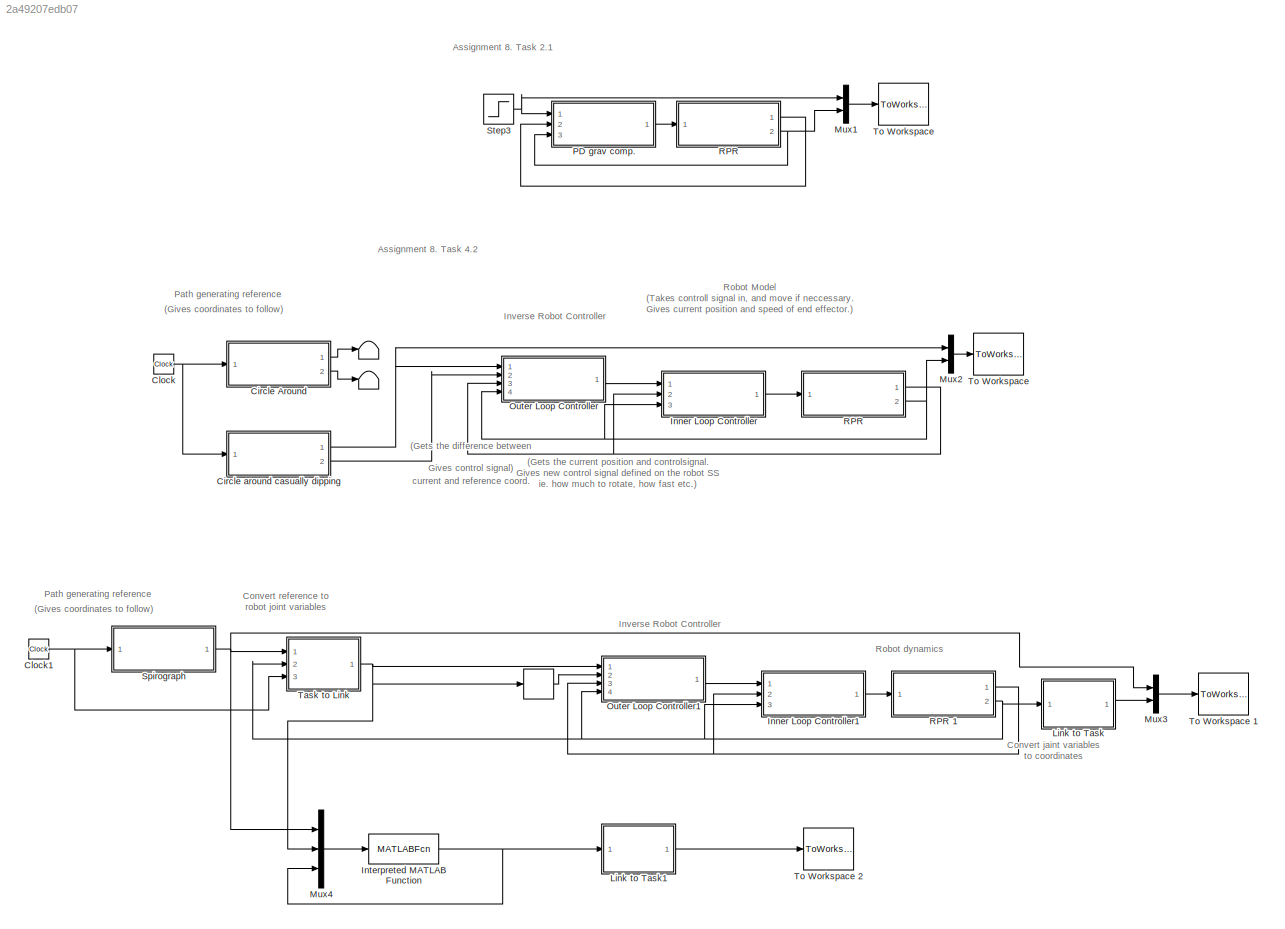
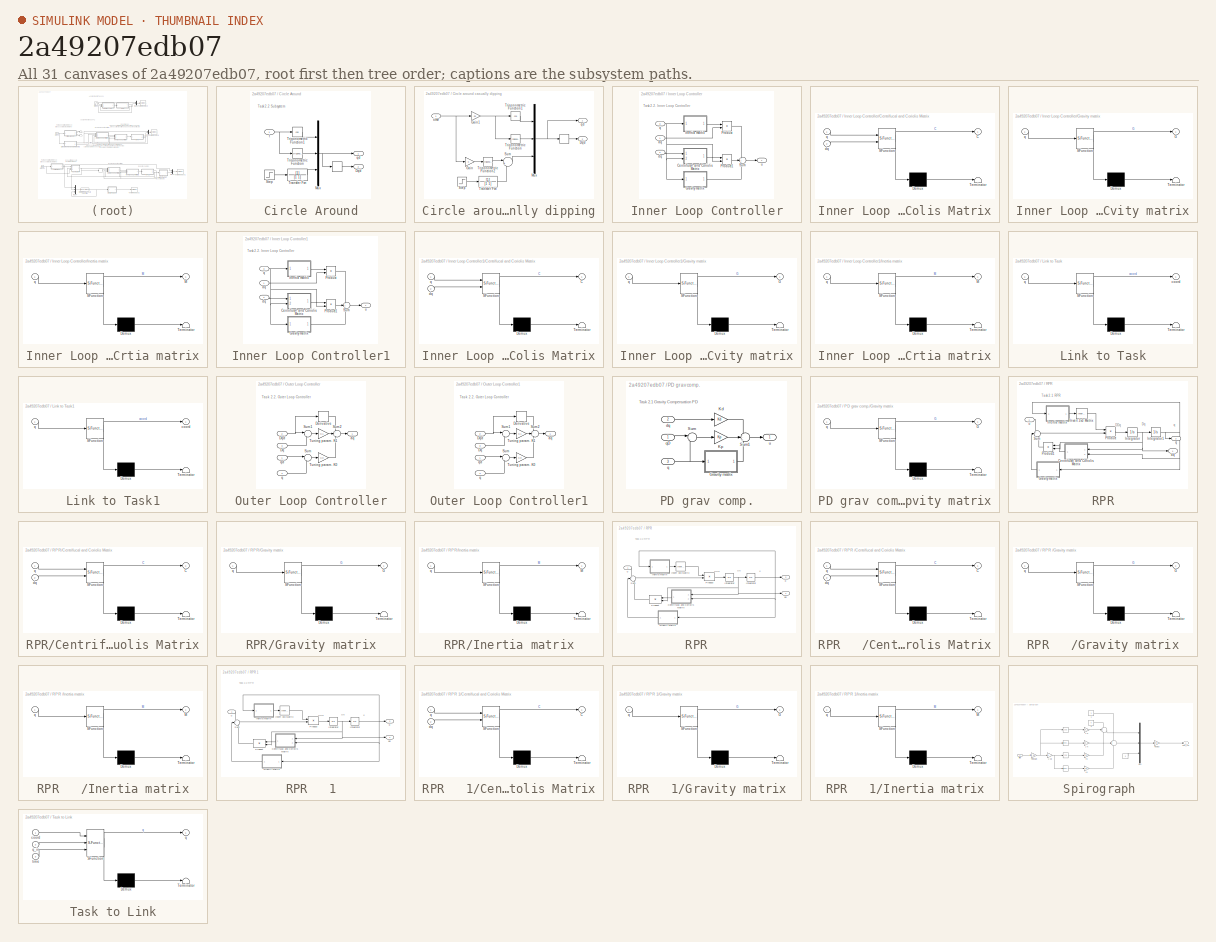
[diagram: thumbnail index - all 31 canvases of the model, root first then tree order]
MODEL slx_2a49207edb07
KIND model
BLOCK [Terminator]  
BLOCK [Terminator]   
BLOCK [SubSystem] Circle Around
  Ports = [1, 2]
  RequestExecContextInheritance = off
BLOCK [Derivative] Circle Around/ 
BLOCK [Outport] Circle Around/Dqd
  IconDisplay = Port number
  Port = 2
BLOCK [Mux] Circle Around/Mux
  DisplayOption = bar
  Inputs = 3
  Ports = [3, 1]
BLOCK [Step] Circle Around/Step
  SampleTime = 0
BLOCK [TransferFcn] Circle Around/Transfer Fcn
  Denominator = [1 1]
BLOCK [Trigonometry] Circle Around/Trigonometric Function
  Ports = [1, 1]
BLOCK [Trigonometry] Circle Around/Trigonometric Function1
  Operator = cos
  Ports = [1, 1]
BLOCK [Outport] Circle Around/qd
  IconDisplay = Port number
BLOCK [Inport] Circle Around/t
  IconDisplay = Port number
BLOCK [SubSystem] Circle around casually dipping
  Ports = [1, 2]
  RequestExecContextInheritance = off
BLOCK [Derivative] Circle around casually dipping/ 
BLOCK [Outport] Circle around casually dipping/Dqd
  IconDisplay = Port number
  Port = 2
BLOCK [Gain] Circle around casually dipping/Gain
  OutDataTypeStr = Inherit: Inherit via internal rule
  ParamDataTypeStr = Inherit: Inherit via internal rule
  SaturateOnIntegerOverflow = off
BLOCK [Gain] Circle around casually dipping/Gain1
  Gain = .25
  OutDataTypeStr = Inherit: Inherit via internal rule
  ParamDataTypeStr = Inherit: Inherit via internal rule
  SaturateOnIntegerOverflow = off
BLOCK [Mux] Circle around casually dipping/Mux
  DisplayOption = bar
  Inputs = 3
  Ports = [3, 1]
BLOCK [Step] Circle around casually dipping/Step
  SampleTime = 0
BLOCK [Sum] Circle around casually dipping/Sum
  IconShape = round
  InputSameDT = off
  Inputs = |++
  OutDataTypeStr = Inherit: Inherit via internal rule
  Ports = [2, 1]
  SaturateOnIntegerOverflow = off
BLOCK [TransferFcn] Circle around casually dipping/Transfer Fcn
  Denominator = [1 1]
BLOCK [Trigonometry] Circle around casually dipping/Trigonometric Function
  Ports = [1, 1]
BLOCK [Trigonometry] Circle around casually dipping/Trigonometric Function1
  Operator = cos
  Ports = [1, 1]
BLOCK [Trigonometry] Circle around casually dipping/Trigonometric Function2
  Ports = [1, 1]
BLOCK [Outport] Circle around casually dipping/qd
  IconDisplay = Port number
BLOCK [Inport] Circle around casually dipping/time
  IconDisplay = Port number
BLOCK [Clock] Clock
BLOCK [Clock] Clock1
BLOCK [SubSystem] Inner Loop Controller
  Ports = [3, 1]
  RequestExecContextInheritance = off
BLOCK [SubSystem] Inner Loop Controller/Centrifucal and Coriolis Matrix
  ErrorFcn = Stateflow.Translate.translate
  PermitHierarchicalResolution = ExplicitOnly
  Ports = [2, 1]
  RequestExecContextInheritance = off
  SFBlockType = MATLAB Function
  TreatAsAtomicUnit = on
BLOCK [Demux] Inner Loop Controller/Centrifucal and Coriolis Matrix/ Demux 
  Outputs = 1
  Ports = [1, 1]
BLOCK [S-Function] Inner Loop Controller/Centrifucal and Coriolis Matrix/ SFunction 
  EnableBusSupport = on
  FunctionName = sf_sfun
  PortCounts = [2 2]
  Ports = [2, 2]
  Tag = Stateflow S-Function model8 3
BLOCK [Terminator] Inner Loop Controller/Centrifucal and Coriolis Matrix/ Terminator 
BLOCK [Outport] Inner Loop Controller/Centrifucal and Coriolis Matrix/C
  IconDisplay = Port number
BLOCK [Inport] Inner Loop Controller/Centrifucal and Coriolis Matrix/dq
  IconDisplay = Port number
  Port = 2
BLOCK [Inport] Inner Loop Controller/Centrifucal and Coriolis Matrix/q
  IconDisplay = Port number
BLOCK [SubSystem] Inner Loop Controller/Gravity matrix
  ErrorFcn = Stateflow.Translate.translate
  PermitHierarchicalResolution = ExplicitOnly
  Ports = [1, 1]
  RequestExecContextInheritance = off
  SFBlockType = MATLAB Function
  TreatAsAtomicUnit = on
BLOCK [Demux] Inner Loop Controller/Gravity matrix/ Demux 
  Outputs = 1
  Ports = [1, 1]
BLOCK [S-Function] Inner Loop Controller/Gravity matrix/ SFunction 
  EnableBusSupport = on
  FunctionName = sf_sfun
  PortCounts = [1 2]
  Ports = [1, 2]
  Tag = Stateflow S-Function model8 9
BLOCK [Terminator] Inner Loop Controller/Gravity matrix/ Terminator 
BLOCK [Outport] Inner Loop Controller/Gravity matrix/G
  IconDisplay = Port number
BLOCK [Inport] Inner Loop Controller/Gravity matrix/q
  IconDisplay = Port number
BLOCK [SubSystem] Inner Loop Controller/Inertia matrix
  ErrorFcn = Stateflow.Translate.translate
  PermitHierarchicalResolution = ExplicitOnly
  Ports = [1, 1]
  RequestExecContextInheritance = off
  SFBlockType = MATLAB Function
  TreatAsAtomicUnit = on
BLOCK [Demux] Inner Loop Controller/Inertia matrix/ Demux 
  Outputs = 1
  Ports = [1, 1]
BLOCK [S-Function] Inner Loop Controller/Inertia matrix/ SFunction 
  EnableBusSupport = on
  FunctionName = sf_sfun
  PortCounts = [1 2]
  Ports = [1, 2]
  Tag = Stateflow S-Function model8 10
BLOCK [Terminator] Inner Loop Controller/Inertia matrix/ Terminator 
BLOCK [Outport] Inner Loop Controller/Inertia matrix/M
  IconDisplay = Port number
BLOCK [Inport] Inner Loop Controller/Inertia matrix/q
  IconDisplay = Port number
BLOCK [Product] Inner Loop Controller/Product
  InputSameDT = off
  Multiplication = Matrix(*)
  OutDataTypeStr = Inherit: Inherit via internal rule
  Ports = [2, 1]
  RndMeth = Floor
  SaturateOnIntegerOverflow = off
BLOCK [Product] Inner Loop Controller/Product1
  InputSameDT = off
  Multiplication = Matrix(*)
  OutDataTypeStr = Inherit: Inherit via internal rule
  Ports = [2, 1]
  RndMeth = Floor
  SaturateOnIntegerOverflow = off
BLOCK [Sum] Inner Loop Controller/Sum
  IconShape = round
  InputSameDT = off
  Inputs = +++
  OutDataTypeStr = Inherit: Inherit via internal rule
  Ports = [3, 1]
  SaturateOnIntegerOverflow = off
BLOCK [Inport] Inner Loop Controller/aq
  IconDisplay = Port number
BLOCK [Inport] Inner Loop Controller/dq
  IconDisplay = Port number
  Port = 2
BLOCK [Inport] Inner Loop Controller/q
  IconDisplay = Port number
  Port = 3
BLOCK [Outport] Inner Loop Controller/u
  IconDisplay = Port number
BLOCK [SubSystem] Inner Loop Controller1
  Ports = [3, 1]
  RequestExecContextInheritance = off
BLOCK [SubSystem] Inner Loop Controller1/Centrifucal and Coriolis Matrix
  ErrorFcn = Stateflow.Translate.translate
  PermitHierarchicalResolution = ExplicitOnly
  Ports = [2, 1]
  RequestExecContextInheritance = off
  SFBlockType = MATLAB Function
  TreatAsAtomicUnit = on
BLOCK [Demux] Inner Loop Controller1/Centrifucal and Coriolis Matrix/ Demux 
  Outputs = 1
  Ports = [1, 1]
BLOCK [S-Function] Inner Loop Controller1/Centrifucal and Coriolis Matrix/ SFunction 
  EnableBusSupport = on
  FunctionName = sf_sfun
  PortCounts = [2 2]
  Ports = [2, 2]
  Tag = Stateflow S-Function model8 1
BLOCK [Terminator] Inner Loop Controller1/Centrifucal and Coriolis Matrix/ Terminator 
BLOCK [Outport] Inner Loop Controller1/Centrifucal and Coriolis Matrix/C
  IconDisplay = Port number
BLOCK [Inport] Inner Loop Controller1/Centrifucal and Coriolis Matrix/dq
  IconDisplay = Port number
  Port = 2
BLOCK [Inport] Inner Loop Controller1/Centrifucal and Coriolis Matrix/q
  IconDisplay = Port number
BLOCK [SubSystem] Inner Loop Controller1/Gravity matrix
  ErrorFcn = Stateflow.Translate.translate
  PermitHierarchicalResolution = ExplicitOnly
  Ports = [1, 1]
  RequestExecContextInheritance = off
  SFBlockType = MATLAB Function
  TreatAsAtomicUnit = on
BLOCK [Demux] Inner Loop Controller1/Gravity matrix/ Demux 
  Outputs = 1
  Ports = [1, 1]
BLOCK [S-Function] Inner Loop Controller1/Gravity matrix/ SFunction 
  EnableBusSupport = on
  FunctionName = sf_sfun
  PortCounts = [1 2]
  Ports = [1, 2]
  Tag = Stateflow S-Function model8 2
BLOCK [Terminator] Inner Loop Controller1/Gravity matrix/ Terminator 
BLOCK [Outport] Inner Loop Controller1/Gravity matrix/G
  IconDisplay = Port number
BLOCK [Inport] Inner Loop Controller1/Gravity matrix/q
  IconDisplay = Port number
BLOCK [SubSystem] Inner Loop Controller1/Inertia matrix
  ErrorFcn = Stateflow.Translate.translate
  PermitHierarchicalResolution = ExplicitOnly
  Ports = [1, 1]
  RequestExecContextInheritance = off
  SFBlockType = MATLAB Function
  TreatAsAtomicUnit = on
BLOCK [Demux] Inner Loop Controller1/Inertia matrix/ Demux 
  Outputs = 1
  Ports = [1, 1]
BLOCK [S-Function] Inner Loop Controller1/Inertia matrix/ SFunction 
  EnableBusSupport = on
  FunctionName = sf_sfun
  PortCounts = [1 2]
  Ports = [1, 2]
  Tag = Stateflow S-Function model8 4
BLOCK [Terminator] Inner Loop Controller1/Inertia matrix/ Terminator 
BLOCK [Outport] Inner Loop Controller1/Inertia matrix/M
  IconDisplay = Port number
BLOCK [Inport] Inner Loop Controller1/Inertia matrix/q
  IconDisplay = Port number
BLOCK [Product] Inner Loop Controller1/Product
  InputSameDT = off
  Multiplication = Matrix(*)
  OutDataTypeStr = Inherit: Inherit via internal rule
  Ports = [2, 1]
  RndMeth = Floor
  SaturateOnIntegerOverflow = off
BLOCK [Product] Inner Loop Controller1/Product1
  InputSameDT = off
  Multiplication = Matrix(*)
  OutDataTypeStr = Inherit: Inherit via internal rule
  Ports = [2, 1]
  RndMeth = Floor
  SaturateOnIntegerOverflow = off
BLOCK [Sum] Inner Loop Controller1/Sum
  IconShape = round
  InputSameDT = off
  Inputs = +++
  OutDataTypeStr = Inherit: Inherit via internal rule
  Ports = [3, 1]
  SaturateOnIntegerOverflow = off
BLOCK [Inport] Inner Loop Controller1/aq
  IconDisplay = Port number
BLOCK [Inport] Inner Loop Controller1/dq
  IconDisplay = Port number
  Port = 2
BLOCK [Inport] Inner Loop Controller1/q
  IconDisplay = Port number
  Port = 3
BLOCK [Outport] Inner Loop Controller1/u
  IconDisplay = Port number
BLOCK [MATLABFcn] Interpreted MATLAB Function
  Commented = through
  MATLABFcn = forward_optim(u(7:9), u(4:6), u(1:3))
  OutputDimensions = 3
  Ports = [1, 1]
BLOCK [SubSystem] Link to Task
  ErrorFcn = Stateflow.Translate.translate
  PermitHierarchicalResolution = ExplicitOnly
  Ports = [1, 1]
  RequestExecContextInheritance = off
  SFBlockType = MATLAB Function
  TreatAsAtomicUnit = on
BLOCK [Demux] Link to Task/ Demux 
  Outputs = 1
  Ports = [1, 1]
BLOCK [S-Function] Link to Task/ SFunction 
  EnableBusSupport = on
  FunctionName = sf_sfun
  PortCounts = [1 2]
  Ports = [1, 2]
  Tag = Stateflow S-Function model8 17
BLOCK [Terminator] Link to Task/ Terminator 
BLOCK [Outport] Link to Task/coord
  IconDisplay = Port number
BLOCK [Inport] Link to Task/q
  IconDisplay = Port number
BLOCK [SubSystem] Link to Task1
  Commented = through
  ErrorFcn = Stateflow.Translate.translate
  PermitHierarchicalResolution = ExplicitOnly
  Ports = [1, 1]
  RequestExecContextInheritance = off
  SFBlockType = MATLAB Function
  TreatAsAtomicUnit = on
BLOCK [Demux] Link to Task1/ Demux 
  Outputs = 1
  Ports = [1, 1]
BLOCK [S-Function] Link to Task1/ SFunction 
  EnableBusSupport = on
  FunctionName = sf_sfun
  PortCounts = [1 2]
  Ports = [1, 2]
  Tag = Stateflow S-Function model8 19
BLOCK [Terminator] Link to Task1/ Terminator 
BLOCK [Outport] Link to Task1/coord
  IconDisplay = Port number
BLOCK [Inport] Link to Task1/q
  IconDisplay = Port number
BLOCK [Mux] Mux1
  DisplayOption = bar
  Inputs = 2
  Ports = [2, 1]
BLOCK [Mux] Mux2
  DisplayOption = bar
  Inputs = 2
  Ports = [2, 1]
BLOCK [Mux] Mux3
  DisplayOption = bar
  Inputs = 2
  Ports = [2, 1]
BLOCK [Mux] Mux4
  Commented = on
  DisplayOption = bar
  Inputs = 3
  Ports = [3, 1]
BLOCK [SubSystem] Outer Loop Controller
  Ports = [4, 1]
  RequestExecContextInheritance = off
BLOCK [Derivative] Outer Loop Controller/Derivative
BLOCK [Inport] Outer Loop Controller/Dq
  IconDisplay = Port number
  Port = 3
BLOCK [Inport] Outer Loop Controller/Dqd
  IconDisplay = Port number
  Port = 2
BLOCK [Sum] Outer Loop Controller/Sum
  IconShape = round
  InputSameDT = off
  Inputs = |-+
  OutDataTypeStr = Inherit: Inherit via internal rule
  Ports = [2, 1]
  SaturateOnIntegerOverflow = off
BLOCK [Sum] Outer Loop Controller/Sum1
  IconShape = round
  InputSameDT = off
  Inputs = |-+
  OutDataTypeStr = Inherit: Inherit via internal rule
  Ports = [2, 1]
  SaturateOnIntegerOverflow = off
BLOCK [Sum] Outer Loop Controller/Sum2
  IconShape = round
  InputSameDT = off
  Inputs = +--
  OutDataTypeStr = Inherit: Inherit via internal rule
  Ports = [3, 1]
  SaturateOnIntegerOverflow = off
BLOCK [Gain] Outer Loop Controller/Tuning param. K0
  Gain = K0
  Multiplication = Matrix(K*u) (u vector)
  OutDataTypeStr = Inherit: Inherit via internal rule
  ParamDataTypeStr = Inherit: Inherit via internal rule
  SaturateOnIntegerOverflow = off
BLOCK [Gain] Outer Loop Controller/Tuning param. K1
  Gain = K1
  Multiplication = Matrix(K*u) (u vector)
  OutDataTypeStr = Inherit: Inherit via internal rule
  ParamDataTypeStr = Inherit: Inherit via internal rule
  SaturateOnIntegerOverflow = off
BLOCK [Outport] Outer Loop Controller/aq
  IconDisplay = Port number
BLOCK [Inport] Outer Loop Controller/q
  IconDisplay = Port number
  Port = 4
BLOCK [Inport] Outer Loop Controller/qd
  IconDisplay = Port number
BLOCK [SubSystem] Outer Loop Controller1
  Ports = [4, 1]
  RequestExecContextInheritance = off
BLOCK [Derivative] Outer Loop Controller1/Derivative
BLOCK [Inport] Outer Loop Controller1/Dq
  IconDisplay = Port number
  Port = 3
BLOCK [Inport] Outer Loop Controller1/Dqd
  IconDisplay = Port number
  Port = 2
BLOCK [Sum] Outer Loop Controller1/Sum
  IconShape = round
  InputSameDT = off
  Inputs = |-+
  OutDataTypeStr = Inherit: Inherit via internal rule
  Ports = [2, 1]
  SaturateOnIntegerOverflow = off
BLOCK [Sum] Outer Loop Controller1/Sum1
  IconShape = round
  InputSameDT = off
  Inputs = |-+
  OutDataTypeStr = Inherit: Inherit via internal rule
  Ports = [2, 1]
  SaturateOnIntegerOverflow = off
BLOCK [Sum] Outer Loop Controller1/Sum2
  IconShape = round
  InputSameDT = off
  Inputs = +--
  OutDataTypeStr = Inherit: Inherit via internal rule
  Ports = [3, 1]
  SaturateOnIntegerOverflow = off
BLOCK [Gain] Outer Loop Controller1/Tuning param. K0
  Gain = K0
  Multiplication = Matrix(K*u) (u vector)
  OutDataTypeStr = Inherit: Inherit via internal rule
  ParamDataTypeStr = Inherit: Inherit via internal rule
  SaturateOnIntegerOverflow = off
BLOCK [Gain] Outer Loop Controller1/Tuning param. K1
  Gain = K1
  Multiplication = Matrix(K*u) (u vector)
  OutDataTypeStr = Inherit: Inherit via internal rule
  ParamDataTypeStr = Inherit: Inherit via internal rule
  SaturateOnIntegerOverflow = off
BLOCK [Outport] Outer Loop Controller1/aq
  IconDisplay = Port number
BLOCK [Inport] Outer Loop Controller1/q
  IconDisplay = Port number
  Port = 4
BLOCK [Inport] Outer Loop Controller1/qd
  IconDisplay = Port number
BLOCK [SubSystem] PD grav comp.
  Ports = [3, 1]
  RequestExecContextInheritance = off
BLOCK [SubSystem] PD grav comp./Gravity matrix
  ErrorFcn = Stateflow.Translate.translate
  PermitHierarchicalResolution = ExplicitOnly
  Ports = [1, 1]
  RequestExecContextInheritance = off
  SFBlockType = MATLAB Function
  TreatAsAtomicUnit = on
BLOCK [Demux] PD grav comp./Gravity matrix/ Demux 
  Outputs = 1
  Ports = [1, 1]
BLOCK [S-Function] PD grav comp./Gravity matrix/ SFunction 
  EnableBusSupport = on
  FunctionName = sf_sfun
  PortCounts = [1 2]
  Ports = [1, 2]
  Tag = Stateflow S-Function model8 6
BLOCK [Terminator] PD grav comp./Gravity matrix/ Terminator 
BLOCK [Outport] PD grav comp./Gravity matrix/G
  IconDisplay = Port number
BLOCK [Inport] PD grav comp./Gravity matrix/q
  IconDisplay = Port number
BLOCK [Gain] PD grav comp./Kd
  Gain = Kd
  Multiplication = Matrix(K*u)
  OutDataTypeStr = Inherit: Inherit via internal rule
  ParamDataTypeStr = Inherit: Inherit via internal rule
  SaturateOnIntegerOverflow = off
BLOCK [Gain] PD grav comp./Kp
  Gain = Kp
  Multiplication = Matrix(K*u)
  OutDataTypeStr = Inherit: Inherit via internal rule
  ParamDataTypeStr = Inherit: Inherit via internal rule
  SaturateOnIntegerOverflow = off
BLOCK [Sum] PD grav comp./Sum
  IconShape = round
  InputSameDT = off
  Inputs = |-+
  OutDataTypeStr = Inherit: Inherit via internal rule
  Ports = [2, 1]
  SaturateOnIntegerOverflow = off
BLOCK [Sum] PD grav comp./Sum1
  IconShape = round
  InputSameDT = off
  Inputs = --+
  OutDataTypeStr = Inherit: Inherit via internal rule
  Ports = [3, 1]
  SaturateOnIntegerOverflow = off
BLOCK [Inport] PD grav comp./dq
  IconDisplay = Port number
  Port = 2
BLOCK [Inport] PD grav comp./q
  IconDisplay = Port number
  Port = 3
BLOCK [Inport] PD grav comp./qD
  IconDisplay = Port number
BLOCK [Outport] PD grav comp./u
  IconDisplay = Port number
BLOCK [SubSystem] RPR
  Ports = [1, 2]
  RequestExecContextInheritance = off
BLOCK [SubSystem] RPR   
  Ports = [1, 2]
  RequestExecContextInheritance = off
BLOCK [SubSystem] RPR   /Centrifucal and Coriolis Matrix
  ErrorFcn = Stateflow.Translate.translate
  PermitHierarchicalResolution = ExplicitOnly
  Ports = [2, 1]
  RequestExecContextInheritance = off
  SFBlockType = MATLAB Function
  TreatAsAtomicUnit = on
BLOCK [Demux] RPR   /Centrifucal and Coriolis Matrix/ Demux 
  Outputs = 1
  Ports = [1, 1]
BLOCK [S-Function] RPR   /Centrifucal and Coriolis Matrix/ SFunction 
  EnableBusSupport = on
  FunctionName = sf_sfun
  PortCounts = [2 2]
  Ports = [2, 2]
  Tag = Stateflow S-Function model8 11
BLOCK [Terminator] RPR   /Centrifucal and Coriolis Matrix/ Terminator 
BLOCK [Outport] RPR   /Centrifucal and Coriolis Matrix/C
  IconDisplay = Port number
BLOCK [Inport] RPR   /Centrifucal and Coriolis Matrix/dq
  IconDisplay = Port number
  Port = 2
BLOCK [Inport] RPR   /Centrifucal and Coriolis Matrix/q
  IconDisplay = Port number
BLOCK [SubSystem] RPR   /Gravity matrix
  ErrorFcn = Stateflow.Translate.translate
  PermitHierarchicalResolution = ExplicitOnly
  Ports = [1, 1]
  RequestExecContextInheritance = off
  SFBlockType = MATLAB Function
  TreatAsAtomicUnit = on
BLOCK [Demux] RPR   /Gravity matrix/ Demux 
  Outputs = 1
  Ports = [1, 1]
BLOCK [S-Function] RPR   /Gravity matrix/ SFunction 
  EnableBusSupport = on
  FunctionName = sf_sfun
  PortCounts = [1 2]
  Ports = [1, 2]
  Tag = Stateflow S-Function model8 12
BLOCK [Terminator] RPR   /Gravity matrix/ Terminator 
BLOCK [Outport] RPR   /Gravity matrix/G
  IconDisplay = Port number
BLOCK [Inport] RPR   /Gravity matrix/q
  IconDisplay = Port number
BLOCK [SubSystem] RPR   /Inertia matrix
  ErrorFcn = Stateflow.Translate.translate
  PermitHierarchicalResolution = ExplicitOnly
  Ports = [1, 1]
  RequestExecContextInheritance = off
  SFBlockType = MATLAB Function
  TreatAsAtomicUnit = on
BLOCK [Demux] RPR   /Inertia matrix/ Demux 
  Outputs = 1
  Ports = [1, 1]
BLOCK [S-Function] RPR   /Inertia matrix/ SFunction 
  EnableBusSupport = on
  FunctionName = sf_sfun
  PortCounts = [1 2]
  Ports = [1, 2]
  Tag = Stateflow S-Function model8 13
BLOCK [Terminator] RPR   /Inertia matrix/ Terminator 
BLOCK [Outport] RPR   /Inertia matrix/M
  IconDisplay = Port number
BLOCK [Inport] RPR   /Inertia matrix/q
  IconDisplay = Port number
BLOCK [Integrator] RPR   /Integrator
  InitialCondition = [0;0;0]
  Ports = [1, 1]
BLOCK [Integrator] RPR   /Integrator 
  InitialCondition = [1;0;0]
  Ports = [1, 1]
BLOCK [Reference] RPR   /Invert 3x3 Matrix  REF=aerolibutil/Invert 
3x3 Matrix
  Ports = [1, 1]
  SourceBlock = aerolibutil/Invert \n3x3 Matrix
  SourceType = Invert 3x3 Matrix
BLOCK [Product] RPR   /Product
  InputSameDT = off
  Multiplication = Matrix(*)
  OutDataTypeStr = Inherit: Inherit via internal rule
  Ports = [2, 1]
  RndMeth = Floor
  SaturateOnIntegerOverflow = off
BLOCK [Product] RPR   /Product 
  InputSameDT = off
  Multiplication = Matrix(*)
  OutDataTypeStr = Inherit: Inherit via internal rule
  Ports = [2, 1]
  RndMeth = Floor
  SaturateOnIntegerOverflow = off
BLOCK [Sum] RPR   /Sum
  IconShape = round
  InputSameDT = off
  Inputs = +--
  OutDataTypeStr = Inherit: Inherit via internal rule
  Ports = [3, 1]
  SaturateOnIntegerOverflow = off
BLOCK [Outport] RPR   /dq
  IconDisplay = Port number
BLOCK [Outport] RPR   /q
  IconDisplay = Port number
  Port = 2
BLOCK [Inport] RPR   /u
  IconDisplay = Port number
BLOCK [SubSystem] RPR   1
  Ports = [1, 2]
  RequestExecContextInheritance = off
BLOCK [SubSystem] RPR   1/Centrifucal and Coriolis Matrix
  ErrorFcn = Stateflow.Translate.translate
  PermitHierarchicalResolution = ExplicitOnly
  Ports = [2, 1]
  RequestExecContextInheritance = off
  SFBlockType = MATLAB Function
  TreatAsAtomicUnit = on
BLOCK [Demux] RPR   1/Centrifucal and Coriolis Matrix/ Demux 
  Outputs = 1
  Ports = [1, 1]
BLOCK [S-Function] RPR   1/Centrifucal and Coriolis Matrix/ SFunction 
  EnableBusSupport = on
  FunctionName = sf_sfun
  PortCounts = [2 2]
  Ports = [2, 2]
  Tag = Stateflow S-Function model8 14
BLOCK [Terminator] RPR   1/Centrifucal and Coriolis Matrix/ Terminator 
BLOCK [Outport] RPR   1/Centrifucal and Coriolis Matrix/C
  IconDisplay = Port number
BLOCK [Inport] RPR   1/Centrifucal and Coriolis Matrix/dq
  IconDisplay = Port number
  Port = 2
BLOCK [Inport] RPR   1/Centrifucal and Coriolis Matrix/q
  IconDisplay = Port number
BLOCK [SubSystem] RPR   1/Gravity matrix
  ErrorFcn = Stateflow.Translate.translate
  PermitHierarchicalResolution = ExplicitOnly
  Ports = [1, 1]
  RequestExecContextInheritance = off
  SFBlockType = MATLAB Function
  TreatAsAtomicUnit = on
BLOCK [Demux] RPR   1/Gravity matrix/ Demux 
  Outputs = 1
  Ports = [1, 1]
BLOCK [S-Function] RPR   1/Gravity matrix/ SFunction 
  EnableBusSupport = on
  FunctionName = sf_sfun
  PortCounts = [1 2]
  Ports = [1, 2]
  Tag = Stateflow S-Function model8 15
BLOCK [Terminator] RPR   1/Gravity matrix/ Terminator 
BLOCK [Outport] RPR   1/Gravity matrix/G
  IconDisplay = Port number
BLOCK [Inport] RPR   1/Gravity matrix/q
  IconDisplay = Port number
BLOCK [SubSystem] RPR   1/Inertia matrix
  ErrorFcn = Stateflow.Translate.translate
  PermitHierarchicalResolution = ExplicitOnly
  Ports = [1, 1]
  RequestExecContextInheritance = off
  SFBlockType = MATLAB Function
  TreatAsAtomicUnit = on
BLOCK [Demux] RPR   1/Inertia matrix/ Demux 
  Outputs = 1
  Ports = [1, 1]
BLOCK [S-Function] RPR   1/Inertia matrix/ SFunction 
  EnableBusSupport = on
  FunctionName = sf_sfun
  PortCounts = [1 2]
  Ports = [1, 2]
  Tag = Stateflow S-Function model8 16
BLOCK [Terminator] RPR   1/Inertia matrix/ Terminator 
BLOCK [Outport] RPR   1/Inertia matrix/M
  IconDisplay = Port number
BLOCK [Inport] RPR   1/Inertia matrix/q
  IconDisplay = Port number
BLOCK [Integrator] RPR   1/Integrator
  InitialCondition = [0;0;0]
  Ports = [1, 1]
BLOCK [Integrator] RPR   1/Integrator 
  InitialCondition = [0;0;0]
  Ports = [1, 1]
BLOCK [Reference] RPR   1/Invert 3x3 Matrix  REF=aerolibutil/Invert 
3x3 Matrix
  Ports = [1, 1]
  SourceBlock = aerolibutil/Invert \n3x3 Matrix
  SourceType = Invert 3x3 Matrix
BLOCK [Product] RPR   1/Product
  InputSameDT = off
  Multiplication = Matrix(*)
  OutDataTypeStr = Inherit: Inherit via internal rule
  Ports = [2, 1]
  RndMeth = Floor
  SaturateOnIntegerOverflow = off
BLOCK [Product] RPR   1/Product 
  InputSameDT = off
  Multiplication = Matrix(*)
  OutDataTypeStr = Inherit: Inherit via internal rule
  Ports = [2, 1]
  RndMeth = Floor
  SaturateOnIntegerOverflow = off
BLOCK [Sum] RPR   1/Sum
  IconShape = round
  InputSameDT = off
  Inputs = +--
  OutDataTypeStr = Inherit: Inherit via internal rule
  Ports = [3, 1]
  SaturateOnIntegerOverflow = off
BLOCK [Outport] RPR   1/dq
  IconDisplay = Port number
BLOCK [Outport] RPR   1/q
  IconDisplay = Port number
  Port = 2
BLOCK [Inport] RPR   1/u
  IconDisplay = Port number
BLOCK [SubSystem] RPR/Centrifucal and Coriolis Matrix
  ErrorFcn = Stateflow.Translate.translate
  PermitHierarchicalResolution = ExplicitOnly
  Ports = [2, 1]
  RequestExecContextInheritance = off
  SFBlockType = MATLAB Function
  TreatAsAtomicUnit = on
BLOCK [Demux] RPR/Centrifucal and Coriolis Matrix/ Demux 
  Outputs = 1
  Ports = [1, 1]
BLOCK [S-Function] RPR/Centrifucal and Coriolis Matrix/ SFunction 
  EnableBusSupport = on
  FunctionName = sf_sfun
  PortCounts = [2 2]
  Ports = [2, 2]
  Tag = Stateflow S-Function model8 5
BLOCK [Terminator] RPR/Centrifucal and Coriolis Matrix/ Terminator 
BLOCK [Outport] RPR/Centrifucal and Coriolis Matrix/C
  IconDisplay = Port number
BLOCK [Inport] RPR/Centrifucal and Coriolis Matrix/dq
  IconDisplay = Port number
  Port = 2
BLOCK [Inport] RPR/Centrifucal and Coriolis Matrix/q
  IconDisplay = Port number
BLOCK [SubSystem] RPR/Gravity matrix
  ErrorFcn = Stateflow.Translate.translate
  PermitHierarchicalResolution = ExplicitOnly
  Ports = [1, 1]
  RequestExecContextInheritance = off
  SFBlockType = MATLAB Function
  TreatAsAtomicUnit = on
BLOCK [Demux] RPR/Gravity matrix/ Demux 
  Outputs = 1
  Ports = [1, 1]
BLOCK [S-Function] RPR/Gravity matrix/ SFunction 
  EnableBusSupport = on
  FunctionName = sf_sfun
  PortCounts = [1 2]
  Ports = [1, 2]
  Tag = Stateflow S-Function model8 7
BLOCK [Terminator] RPR/Gravity matrix/ Terminator 
BLOCK [Outport] RPR/Gravity matrix/G
  IconDisplay = Port number
BLOCK [Inport] RPR/Gravity matrix/q
  IconDisplay = Port number
BLOCK [SubSystem] RPR/Inertia matrix
  ErrorFcn = Stateflow.Translate.translate
  PermitHierarchicalResolution = ExplicitOnly
  Ports = [1, 1]
  RequestExecContextInheritance = off
  SFBlockType = MATLAB Function
  TreatAsAtomicUnit = on
BLOCK [Demux] RPR/Inertia matrix/ Demux 
  Outputs = 1
  Ports = [1, 1]
BLOCK [S-Function] RPR/Inertia matrix/ SFunction 
  EnableBusSupport = on
  FunctionName = sf_sfun
  PortCounts = [1 2]
  Ports = [1, 2]
  Tag = Stateflow S-Function model8 8
BLOCK [Terminator] RPR/Inertia matrix/ Terminator 
BLOCK [Outport] RPR/Inertia matrix/M
  IconDisplay = Port number
BLOCK [Inport] RPR/Inertia matrix/q
  IconDisplay = Port number
BLOCK [Integrator] RPR/Integrator
  InitialCondition = [0;0;0]
  Ports = [1, 1]
BLOCK [Integrator] RPR/Integrator1
  InitialCondition = [1;0;0]
  Ports = [1, 1]
BLOCK [Reference] RPR/Invert 3x3 Matrix  REF=aerolibutil/Invert 
3x3 Matrix
  Ports = [1, 1]
  SourceBlock = aerolibutil/Invert \n3x3 Matrix
  SourceType = Invert 3x3 Matrix
BLOCK [Product] RPR/Product
  InputSameDT = off
  Multiplication = Matrix(*)
  OutDataTypeStr = Inherit: Inherit via internal rule
  Ports = [2, 1]
  RndMeth = Floor
  SaturateOnIntegerOverflow = off
BLOCK [Product] RPR/Product1
  InputSameDT = off
  Multiplication = Matrix(*)
  OutDataTypeStr = Inherit: Inherit via internal rule
  Ports = [2, 1]
  RndMeth = Floor
  SaturateOnIntegerOverflow = off
BLOCK [Sum] RPR/Sum
  IconShape = round
  InputSameDT = off
  Inputs = +--
  OutDataTypeStr = Inherit: Inherit via internal rule
  Ports = [3, 1]
  SaturateOnIntegerOverflow = off
BLOCK [Outport] RPR/dq
  IconDisplay = Port number
BLOCK [Outport] RPR/q
  IconDisplay = Port number
  Port = 2
BLOCK [Inport] RPR/u
  IconDisplay = Port number
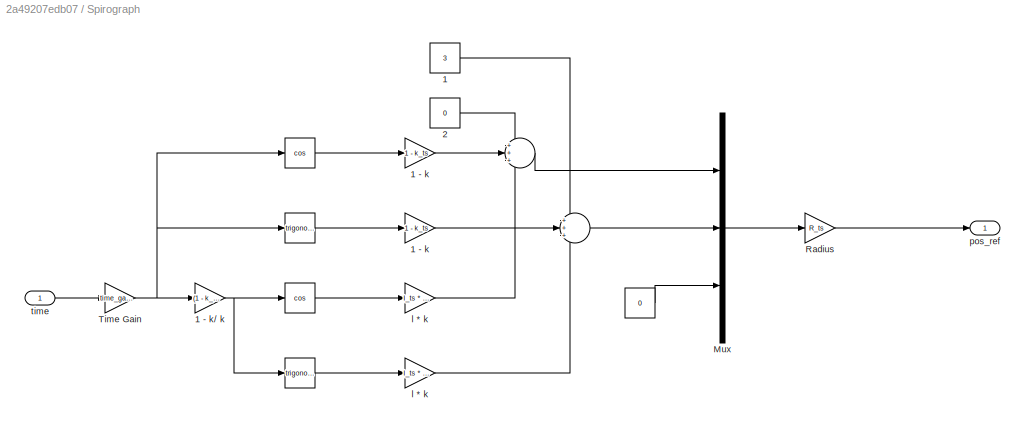
BLOCK [SubSystem] Spirograph 
  Ports = [1, 1]
  RequestExecContextInheritance = off
BLOCK [Constant] Spirograph /    
  Value = 0
BLOCK [Trigonometry] Spirograph /     
  Operator = cos
  Ports = [1, 1]
BLOCK [Trigonometry] Spirograph /      
  Ports = [1, 1]
BLOCK [Trigonometry] Spirograph /       
  Operator = cos
  Ports = [1, 1]
BLOCK [Trigonometry] Spirograph /        
  Ports = [1, 1]
BLOCK [Sum] Spirograph /         
  IconShape = round
  InputSameDT = off
  Inputs = +++
  OutDataTypeStr = Inherit: Inherit via internal rule
  Ports = [3, 1]
  SaturateOnIntegerOverflow = off
BLOCK [Sum] Spirograph /          
  IconShape = round
  InputSameDT = off
  Inputs = +++
  OutDataTypeStr = Inherit: Inherit via internal rule
  Ports = [3, 1]
  SaturateOnIntegerOverflow = off
BLOCK [Constant] Spirograph /    1
  Value = 3
BLOCK [Constant] Spirograph /    2
  Value = 0
BLOCK [Gain] Spirograph /1 - k
  Gain = 1 - k_ts
  OutDataTypeStr = Inherit: Inherit via internal rule
  ParamDataTypeStr = Inherit: Inherit via internal rule
  SaturateOnIntegerOverflow = off
BLOCK [Gain] Spirograph /1 - k 
  Gain = 1 - k_ts
  OutDataTypeStr = Inherit: Inherit via internal rule
  ParamDataTypeStr = Inherit: Inherit via internal rule
  SaturateOnIntegerOverflow = off
BLOCK [Gain] Spirograph /1 - k// k
  Gain = (1 - k_ts) / k_ts
  OutDataTypeStr = Inherit: Inherit via internal rule
  ParamDataTypeStr = Inherit: Inherit via internal rule
  SaturateOnIntegerOverflow = off
BLOCK [Mux] Spirograph /Mux
  DisplayOption = bar
  Inputs = 3
  Ports = [3, 1]
BLOCK [Gain] Spirograph /Radius
  Gain = R_ts
  OutDataTypeStr = Inherit: Inherit via internal rule
  ParamDataTypeStr = Inherit: Inherit via internal rule
  SaturateOnIntegerOverflow = off
BLOCK [Gain] Spirograph /Time Gain
  Gain = time_gain_ts
  OutDataTypeStr = Inherit: Inherit via internal rule
  ParamDataTypeStr = Inherit: Inherit via internal rule
  SaturateOnIntegerOverflow = off
BLOCK [Gain] Spirograph /l * k
  Gain = l_ts * k_ts
  OutDataTypeStr = Inherit: Inherit via internal rule
  ParamDataTypeStr = Inherit: Inherit via internal rule
  SaturateOnIntegerOverflow = off
BLOCK [Gain] Spirograph /l * k 
  Gain = l_ts * k_ts
  OutDataTypeStr = Inherit: Inherit via internal rule
  ParamDataTypeStr = Inherit: Inherit via internal rule
  SaturateOnIntegerOverflow = off
BLOCK [Outport] Spirograph /pos_ref
  IconDisplay = Port number
BLOCK [Inport] Spirograph /time
  IconDisplay = Port number
BLOCK [Step] Step3
  After = [qd1;qd2;qd3]
  Before = [0;0;0]
  SampleTime = 0
  Time = 0
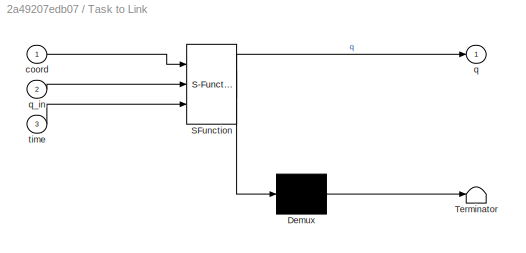
BLOCK [SubSystem] Task to Link
  ErrorFcn = Stateflow.Translate.translate
  PermitHierarchicalResolution = ExplicitOnly
  Ports = [3, 1]
  RequestExecContextInheritance = off
  SFBlockType = MATLAB Function
  TreatAsAtomicUnit = on
BLOCK [Demux] Task to Link/ Demux 
  Outputs = 1
  Ports = [1, 1]
BLOCK [S-Function] Task to Link/ SFunction 
  EnableBusSupport = on
  FunctionName = sf_sfun
  PortCounts = [3 2]
  Ports = [3, 2]
  Tag = Stateflow S-Function model8 18
BLOCK [Terminator] Task to Link/ Terminator 
BLOCK [Inport] Task to Link/coord
  IconDisplay = Port number
BLOCK [Outport] Task to Link/q
  IconDisplay = Port number
BLOCK [Inport] Task to Link/q_in
  IconDisplay = Port number
  Port = 2
BLOCK [Inport] Task to Link/time
  IconDisplay = Port number
  Port = 3
BLOCK [ToWorkspace] To Workspace
  MaxDataPoints = inf
  Ports = [1]
  SampleTime = -1
  Save2DSignal = 2-D array (concatenate along first dimension)
  SaveFormat = Timeseries
  VariableName = PD
BLOCK [ToWorkspace] To Workspace    
  MaxDataPoints = inf
  Ports = [1]
  SampleTime = -1
  Save2DSignal = 2-D array (concatenate along first dimension)
  SaveFormat = Timeseries
  VariableName = inverse
BLOCK [ToWorkspace] To Workspace    1
  MaxDataPoints = inf
  Ports = [1]
  SampleTime = -1
  Save2DSignal = 2-D array (concatenate along first dimension)
  SaveFormat = Timeseries
  VariableName = inverse1
BLOCK [ToWorkspace] To Workspace    2
  Commented = on
  MaxDataPoints = inf
  Ports = [1]
  SampleTime = -1
  Save2DSignal = 2-D array (concatenate along first dimension)
  SaveFormat = Timeseries
  VariableName = testt
ANNOTATION (root): (Gets the current position and controlsignal. Gives new control signal defined on the robot SS ie. how much to rotate, how fast etc.)
ANNOTATION (root): (Gets the difference between current and reference coord. Gives control signal)
ANNOTATION (root): (Gives coordinates to follow)
ANNOTATION (root): Assignment 8. Task 2.1
ANNOTATION (root): Assignment 8. Task 4.2
ANNOTATION (root): Convert jaint variables to coordinates
ANNOTATION (root): Convert reference to robot joint variables
ANNOTATION (root): Inverse Robot Controller
ANNOTATION (root): Path generating reference
ANNOTATION (root): Robot Model (Takes controll signal in, and move if neccessary. Gives current position and speed of end effector.)
ANNOTATION (root): Robot dynamics
ANNOTATION Circle Around: Task 2.2 Subsystem
ANNOTATION Inner Loop Controller: Task 2.2. Inner Loop Controller
ANNOTATION Inner Loop Controller1: Task 2.2. Inner Loop Controller
ANNOTATION Outer Loop Controller: Task 2.2. Outer Loop Controller
ANNOTATION Outer Loop Controller1: Task 2.2. Outer Loop Controller
ANNOTATION PD grav comp.: Task 2.1 Gravity Compensation PD
ANNOTATION RPR: DDq
ANNOTATION RPR: Dq
ANNOTATION RPR: Task 2.1 RPR
ANNOTATION RPR: q
ANNOTATION RPR   : DDq
ANNOTATION RPR   : Dq
ANNOTATION RPR   : Task 2.2 RPR
ANNOTATION RPR   : q
ANNOTATION RPR   1: DDq
ANNOTATION RPR   1: Dq
ANNOTATION RPR   1: Task 2.2 RPR
ANNOTATION RPR   1: q
LINE  :1 -> Outer Loop Controller1:2
LINE Circle Around/ :1 -> Circle Around/Dqd:1
NET Circle Around/Mux:1 -> Circle Around/ :1, Circle Around/qd:1
LINE Circle Around/Step:1 -> Circle Around/Transfer Fcn:1
LINE Circle Around/Transfer Fcn:1 -> Circle Around/Mux:3
LINE Circle Around/Trigonometric Function1:1 -> Circle Around/Mux:1
LINE Circle Around/Trigonometric Function:1 -> Circle Around/Mux:2
NET Circle Around/t:1 -> Circle Around/Trigonometric Function1:1, Circle Around/Trigonometric Function:1
LINE Circle Around:1 ->  :1
LINE Circle Around:2 ->   :1
LINE Circle around casually dipping/ :1 -> Circle around casually dipping/Dqd:1
NET Circle around casually dipping/Gain1:1 -> Circle around casually dipping/Trigonometric Function1:1, Circle around casually dipping/Trigonometric Function:1
LINE Circle around casually dipping/Gain:1 -> Circle around casually dipping/Trigonometric Function2:1
NET Circle around casually dipping/Mux:1 -> Circle around casually dipping/ :1, Circle around casually dipping/qd:1
LINE Circle around casually dipping/Step:1 -> Circle around casually dipping/Transfer Fcn:1
LINE Circle around casually dipping/Sum:1 -> Circle around casually dipping/Mux:3
LINE Circle around casually dipping/Transfer Fcn:1 -> Circle around casually dipping/Sum:2
LINE Circle around casually dipping/Trigonometric Function1:1 -> Circle around casually dipping/Mux:1
LINE Circle around casually dipping/Trigonometric Function2:1 -> Circle around casually dipping/Sum:1
LINE Circle around casually dipping/Trigonometric Function:1 -> Circle around casually dipping/Mux:2
NET Circle around casually dipping/time:1 -> Circle around casually dipping/Gain1:1, Circle around casually dipping/Gain:1
NET Circle around casually dipping:1 -> Mux2:1, Outer Loop Controller:1
LINE Circle around casually dipping:2 -> Outer Loop Controller:2
NET Clock1:1 -> Spirograph :1, Task to Link:3
NET Clock:1 -> Circle Around:1, Circle around casually dipping:1
LINE Inner Loop Controller/Centrifucal and Coriolis Matrix:1 -> Inner Loop Controller/Product1:1
LINE Inner Loop Controller/Gravity matrix:1 -> Inner Loop Controller/Sum:3
LINE Inner Loop Controller/Inertia matrix:1 -> Inner Loop Controller/Product:1
LINE Inner Loop Controller/Product1:1 -> Inner Loop Controller/Sum:2
LINE Inner Loop Controller/Product:1 -> Inner Loop Controller/Sum:1
LINE Inner Loop Controller/Sum:1 -> Inner Loop Controller/u:1
LINE Inner Loop Controller/aq:1 -> Inner Loop Controller/Product:2
LINE Inner Loop Controller/dq:1 -> Inner Loop Controller/Centrifucal and Coriolis Matrix:1
NET Inner Loop Controller/q:1 -> Inner Loop Controller/Centrifucal and Coriolis Matrix:2, Inner Loop Controller/Gravity matrix:1, Inner Loop Controller/Inertia matrix:1, Inner Loop Controller/Product1:2
LINE Inner Loop Controller1/Centrifucal and Coriolis Matrix:1 -> Inner Loop Controller1/Product1:1
LINE Inner Loop Controller1/Gravity matrix:1 -> Inner Loop Controller1/Sum:3
LINE Inner Loop Controller1/Inertia matrix:1 -> Inner Loop Controller1/Product:1
LINE Inner Loop Controller1/Product1:1 -> Inner Loop Controller1/Sum:2
LINE Inner Loop Controller1/Product:1 -> Inner Loop Controller1/Sum:1
LINE Inner Loop Controller1/Sum:1 -> Inner Loop Controller1/u:1
LINE Inner Loop Controller1/aq:1 -> Inner Loop Controller1/Product:2
LINE Inner Loop Controller1/dq:1 -> Inner Loop Controller1/Centrifucal and Coriolis Matrix:1
NET Inner Loop Controller1/q:1 -> Inner Loop Controller1/Centrifucal and Coriolis Matrix:2, Inner Loop Controller1/Gravity matrix:1, Inner Loop Controller1/Inertia matrix:1, Inner Loop Controller1/Product1:2
LINE Inner Loop Controller1:1 -> RPR   1:1
LINE Inner Loop Controller:1 -> RPR   :1
NET Interpreted MATLAB Function:1 -> Link to Task1:1, Mux4:3
LINE Link to Task1:1 -> To Workspace    2:1
LINE Link to Task:1 -> Mux3:2
LINE Mux1:1 -> To Workspace:1
LINE Mux2:1 -> To Workspace    :1
LINE Mux3:1 -> To Workspace    1:1
LINE Mux4:1 -> Interpreted MATLAB Function:1
LINE Outer Loop Controller/Derivative:1 -> Outer Loop Controller/Sum2:1
LINE Outer Loop Controller/Dq:1 -> Outer Loop Controller/Sum1:2
NET Outer Loop Controller/Dqd:1 -> Outer Loop Controller/Derivative:1, Outer Loop Controller/Sum1:1
LINE Outer Loop Controller/Sum1:1 -> Outer Loop Controller/Tuning param. K1:1
LINE Outer Loop Controller/Sum2:1 -> Outer Loop Controller/aq:1
LINE Outer Loop Controller/Sum:1 -> Outer Loop Controller/Tuning param. K0:1
LINE Outer Loop Controller/Tuning param. K0:1 -> Outer Loop Controller/Sum2:3
LINE Outer Loop Controller/Tuning param. K1:1 -> Outer Loop Controller/Sum2:2
LINE Outer Loop Controller/q:1 -> Outer Loop Controller/Sum:2
LINE Outer Loop Controller/qd:1 -> Outer Loop Controller/Sum:1
LINE Outer Loop Controller1/Derivative:1 -> Outer Loop Controller1/Sum2:1
LINE Outer Loop Controller1/Dq:1 -> Outer Loop Controller1/Sum1:2
NET Outer Loop Controller1/Dqd:1 -> Outer Loop Controller1/Derivative:1, Outer Loop Controller1/Sum1:1
LINE Outer Loop Controller1/Sum1:1 -> Outer Loop Controller1/Tuning param. K1:1
LINE Outer Loop Controller1/Sum2:1 -> Outer Loop Controller1/aq:1
LINE Outer Loop Controller1/Sum:1 -> Outer Loop Controller1/Tuning param. K0:1
LINE Outer Loop Controller1/Tuning param. K0:1 -> Outer Loop Controller1/Sum2:3
LINE Outer Loop Controller1/Tuning param. K1:1 -> Outer Loop Controller1/Sum2:2
LINE Outer Loop Controller1/q:1 -> Outer Loop Controller1/Sum:2
LINE Outer Loop Controller1/qd:1 -> Outer Loop Controller1/Sum:1
LINE Outer Loop Controller1:1 -> Inner Loop Controller1:1
LINE Outer Loop Controller:1 -> Inner Loop Controller:1
LINE PD grav comp./Gravity matrix:1 -> PD grav comp./Sum1:3
LINE PD grav comp./Kd:1 -> PD grav comp./Sum1:1
LINE PD grav comp./Kp:1 -> PD grav comp./Sum1:2
LINE PD grav comp./Sum1:1 -> PD grav comp./u:1
LINE PD grav comp./Sum:1 -> PD grav comp./Kp:1
LINE PD grav comp./dq:1 -> PD grav comp./Kd:1
NET PD grav comp./q:1 -> PD grav comp./Gravity matrix:1, PD grav comp./Sum:2
LINE PD grav comp./qD:1 -> PD grav comp./Sum:1
LINE PD grav comp.:1 -> RPR:1
LINE RPR   /Centrifucal and Coriolis Matrix:1 -> RPR   /Product :1
LINE RPR   /Gravity matrix:1 -> RPR   /Sum:2
LINE RPR   /Inertia matrix:1 -> RPR   /Invert 3x3 Matrix:1
NET RPR   /Integrator :1 -> RPR   /Centrifucal and Coriolis Matrix:2, RPR   /Gravity matrix:1, RPR   /Inertia matrix:1, RPR   /q:1
NET RPR   /Integrator:1 -> RPR   /Centrifucal and Coriolis Matrix:1, RPR   /Integrator :1, RPR   /Product :2, RPR   /dq:1
LINE RPR   /Invert 3x3 Matrix:1 -> RPR   /Product:1
LINE RPR   /Product :1 -> RPR   /Sum:3
LINE RPR   /Product:1 -> RPR   /Integrator:1
LINE RPR   /Sum:1 -> RPR   /Product:2
LINE RPR   /u:1 -> RPR   /Sum:1
LINE RPR   1/Centrifucal and Coriolis Matrix:1 -> RPR   1/Product :1
LINE RPR   1/Gravity matrix:1 -> RPR   1/Sum:2
LINE RPR   1/Inertia matrix:1 -> RPR   1/Invert 3x3 Matrix:1
NET RPR   1/Integrator :1 -> RPR   1/Centrifucal and Coriolis Matrix:2, RPR   1/Gravity matrix:1, RPR   1/Inertia matrix:1, RPR   1/q:1
NET RPR   1/Integrator:1 -> RPR   1/Centrifucal and Coriolis Matrix:1, RPR   1/Integrator :1, RPR   1/Product :2, RPR   1/dq:1
LINE RPR   1/Invert 3x3 Matrix:1 -> RPR   1/Product:1
LINE RPR   1/Product :1 -> RPR   1/Sum:3
LINE RPR   1/Product:1 -> RPR   1/Integrator:1
LINE RPR   1/Sum:1 -> RPR   1/Product:2
LINE RPR   1/u:1 -> RPR   1/Sum:1
NET RPR   1:1 -> Inner Loop Controller1:2, Outer Loop Controller1:3
NET RPR   1:2 -> Inner Loop Controller1:3, Link to Task:1, Outer Loop Controller1:4, Task to Link:2
NET RPR   :1 -> Inner Loop Controller:2, Outer Loop Controller:3
NET RPR   :2 -> Inner Loop Controller:3, Mux2:2, Outer Loop Controller:4
LINE RPR/Centrifucal and Coriolis Matrix:1 -> RPR/Product1:1
LINE RPR/Gravity matrix:1 -> RPR/Sum:2
LINE RPR/Inertia matrix:1 -> RPR/Invert 3x3 Matrix:1
NET RPR/Integrator1:1 -> RPR/Centrifucal and Coriolis Matrix:2, RPR/Gravity matrix:1, RPR/Inertia matrix:1, RPR/q:1
NET RPR/Integrator:1 -> RPR/Centrifucal and Coriolis Matrix:1, RPR/Integrator1:1, RPR/Product1:2, RPR/dq:1
LINE RPR/Invert 3x3 Matrix:1 -> RPR/Product:1
LINE RPR/Product1:1 -> RPR/Sum:3
LINE RPR/Product:1 -> RPR/Integrator:1
LINE RPR/Sum:1 -> RPR/Product:2
LINE RPR/u:1 -> RPR/Sum:1
LINE RPR:1 -> PD grav comp.:2
NET RPR:2 -> Mux1:2, PD grav comp.:3
LINE Spirograph /          :1 -> Spirograph /Mux:2
LINE Spirograph /         :1 -> Spirograph /Mux:1
LINE Spirograph /        :1 -> Spirograph /l * k :1
LINE Spirograph /       :1 -> Spirograph /l * k:1
LINE Spirograph /      :1 -> Spirograph /1 - k:1
LINE Spirograph /     :1 -> Spirograph /1 - k :1
LINE Spirograph /    1:1 -> Spirograph /          :1
LINE Spirograph /    2:1 -> Spirograph /         :1
LINE Spirograph /    :1 -> Spirograph /Mux:3
LINE Spirograph /1 - k :1 -> Spirograph /         :2
NET Spirograph /1 - k// k:1 -> Spirograph /        :1, Spirograph /       :1
LINE Spirograph /1 - k:1 -> Spirograph /          :2
LINE Spirograph /Mux:1 -> Spirograph /Radius:1
LINE Spirograph /Radius:1 -> Spirograph /pos_ref:1
NET Spirograph /Time Gain:1 -> Spirograph /      :1, Spirograph /     :1, Spirograph /1 - k// k:1
LINE Spirograph /l * k :1 -> Spirograph /          :3
LINE Spirograph /l * k:1 -> Spirograph /         :3
LINE Spirograph /time:1 -> Spirograph /Time Gain:1
NET Spirograph :1 -> Mux3:1, Mux4:1, Task to Link:1
NET Step3:1 -> Mux1:1, PD grav comp.:1
NET Task to Link:1 ->  :1, Mux4:2, Outer Loop Controller1:1
note: NET lines group one-source signal fan-out (src -> all destinations, sorted); 1:1 wires keep LINE
